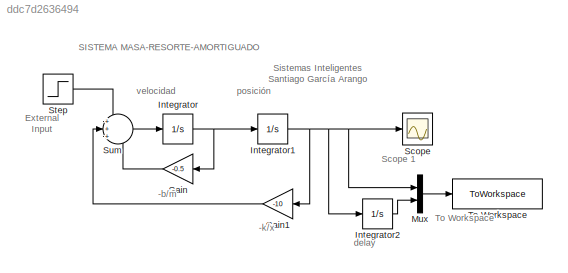
MODEL slx_ddc7d2636494
KIND model
CONFIG AbsTol = auto
CONFIG EnableMultiTasking = off
CONFIG FixedStep = auto
CONFIG MaxStep = auto
CONFIG MinStep = auto
CONFIG RelTol = 1e-9
CONFIG SampleTimeConstraint = Unconstrained
CONFIG Solver = VariableStepAuto
CONFIG SolverName = VariableStepAuto
CONFIG StartTime = 0.0
CONFIG StopTime = 10.0
BLOCK [Gain] Gain
  Gain = -0.5
  NameLocation = top
BLOCK [Gain] Gain1
  Gain = -10
  NameLocation = top
BLOCK [Integrator] Integrator
  Ports = [1, 1]
BLOCK [Integrator] Integrator1
  InitialCondition = 1
  Ports = [1, 1]
BLOCK [Integrator] Integrator2
  Ports = [1, 1]
BLOCK [Mux] Mux
  DisplayOption = bar
  Inputs = 2
  NameLocation = left
  Ports = [2, 1]
BLOCK [Scope] Scope
  Floating = off
  NumInputPorts = 1
  Ports = [1]
  ScopeSpecificationString = Simulink.scopes.TimeScopeBlockCfg('CurrentConfiguration', extmgr.ConfigurationSet(extmgr.Configuration('Core','General UI',true),extmgr.Configuration('Core','Source UI',true),extmgr.Configuration('Sources','WiredSimulink',true),extmgr.Configuration('Visuals','Time Domain',true,'SerializedDisplays',{struct('MinYLimReal','-0.8017','MaxYLimReal','1.20019','YLabelReal','','MinYLimMag','0.00000','MaxYL...<+1358ch>
BLOCK [Step] Step
  After = 0
  Before = 1
  SampleTime = 0
BLOCK [Sum] Sum
  Inputs = +++
  Ports = [3, 1]
BLOCK [ToWorkspace] To Workspace
  FixptAsFi = on
  MaxDataPoints = inf
  Ports = [1]
  SampleTime = -1
  VariableName = ST
ANNOTATION (root): -b/m
ANNOTATION (root): -k/x
ANNOTATION (root): Sistemas Inteligentes Santiago García Arango
ANNOTATION (root): SISTEMA MASA-RESORTE-AMORTIGUADO
ANNOTATION (root): External Input
ANNOTATION (root): Scope 1
ANNOTATION (root): To Workspace
ANNOTATION (root): delay
ANNOTATION (root): posición
ANNOTATION (root): velocidad
LINE Gain1:1 -> Sum:2
LINE Gain:1 -> Sum:3
NET Integrator1:1 -> Gain1:1, Integrator2:1, Mux:1, Scope:1
LINE Integrator2:1 -> Mux:2
NET Integrator:1 -> Gain:1, Integrator1:1
LINE Mux:1 -> To Workspace:1
LINE Step:1 -> Sum:1
LINE Sum:1 -> Integrator:1
note: NET lines group one-source signal fan-out (src -> all destinations, sorted); 1:1 wires keep LINE
